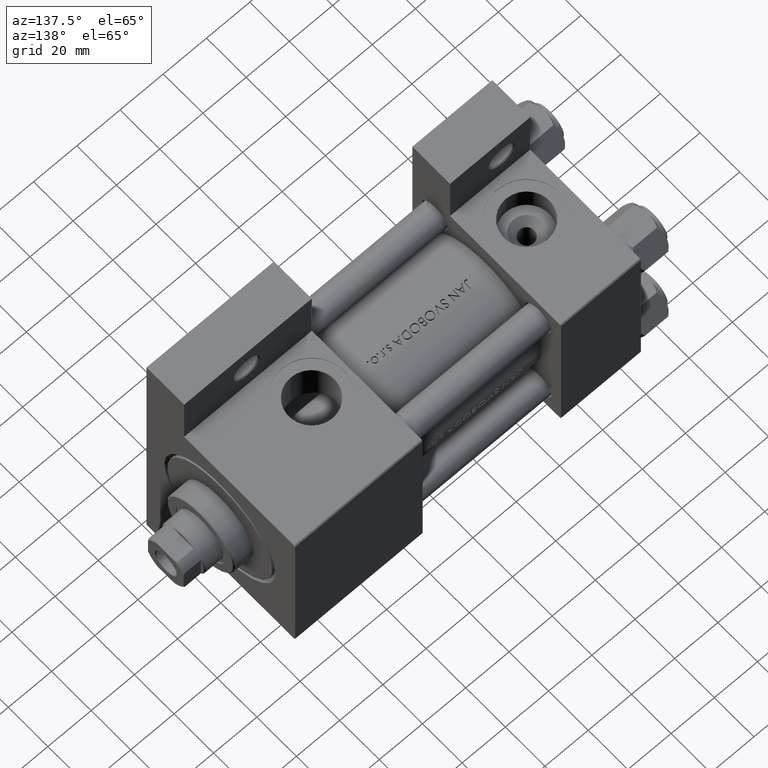
[diagram: clean part render]
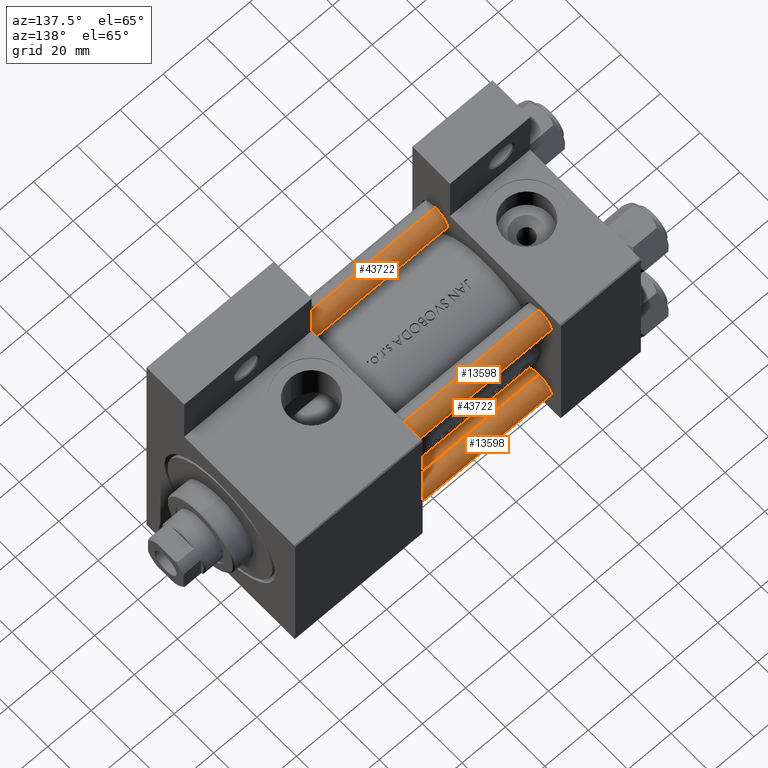
[diagram: same view with one multi-face feature highlighted, each face labeled with its STEP entity id]
A machine part, auxiliary view. The highlighted faces form ONE feature: a constant-radius fillet chain: 4 tangent blend faces with common blend radius 6 mm. The faces share edges in the B-rep.
Their STEP definitions:
[1] entity #13598 (Cylinder):
#445 = DIRECTION ( 'NONE',  ( -0.000000000000000000, -0.000000000000000000, -1.000000000000000000 ) ) ;
#1982 = CARTESIAN_POINT ( 'NONE',  ( -6.000000000000000888, 0.000000000000000000, 0.5000000000000004441 ) ) ;
#2891 = VERTEX_POINT ( 'NONE', #1982 ) ;
#6755 = VERTEX_POINT ( 'NONE', #19419 ) ;
#7080 = ORIENTED_EDGE ( 'NONE', *, *, #23032, .T. ) ;
#8193 = FACE_OUTER_BOUND ( 'NONE', #40879, .T. ) ;
#9201 = AXIS2_PLACEMENT_3D ( 'NONE', #34568, #445, #11924 ) ;
#11924 = DIRECTION ( 'NONE',  ( -1.000000000000000000, 0.000000000000000000, 0.000000000000000000 ) ) ;
#12813 = LINE ( 'NONE', #39923, #15067 ) ;
#13515 = ORIENTED_EDGE ( 'NONE', *, *, #48954, .T. ) ;
#13598 = ADVANCED_FACE ( 'NONE', ( #8193 ), #34069, .T. ) ;
#13812 = CARTESIAN_POINT ( 'NONE',  ( 6.000000000000000888, 7.347880794884120722E-16, 0.5000000000000004441 ) ) ;
#13941 = VERTEX_POINT ( 'NONE', #13812 ) ;
#14401 = CIRCLE ( 'NONE', #42256, 6.000000000000000888 ) ;
#15067 = VECTOR ( 'NONE', #34955, 1000.000000000000000 ) ;
#16630 = CARTESIAN_POINT ( 'NONE',  ( -6.000000000000000888, 0.000000000000000000, 130.0000000000000000 ) ) ;
#17150 = EDGE_CURVE ( 'NONE', #24340, #2891, #35330, .T. ) ;
#19419 = CARTESIAN_POINT ( 'NONE',  ( 6.000000000000000888, 7.347880794884120722E-16, 129.4999999999999716 ) ) ;
#20543 = DIRECTION ( 'NONE',  ( -0.000000000000000000, -0.000000000000000000, 1.000000000000000000 ) ) ;
#20779 = CIRCLE ( 'NONE', #42147, 6.000000000000000888 ) ;
#22416 = ORIENTED_EDGE ( 'NONE', *, *, #17150, .F. ) ;
#23032 = EDGE_CURVE ( 'NONE', #6755, #13941, #12813, .T. ) ;
#24340 = VERTEX_POINT ( 'NONE', #32451 ) ;
#26492 = EDGE_CURVE ( 'NONE', #13941, #2891, #20779, .T. ) ;
#28282 = DIRECTION ( 'NONE',  ( 1.000000000000000000, 0.000000000000000000, 0.000000000000000000 ) ) ;
#28302 = DIRECTION ( 'NONE',  ( 1.000000000000000000, 0.000000000000000000, 0.000000000000000000 ) ) ;
#28785 = CARTESIAN_POINT ( 'NONE',  ( 0.000000000000000000, 0.000000000000000000, 129.4999999999999716 ) ) ;
#30851 = DIRECTION ( 'NONE',  ( -0.000000000000000000, -0.000000000000000000, -1.000000000000000000 ) ) ;
#31576 = ORIENTED_EDGE ( 'NONE', *, *, #26492, .T. ) ;
#32451 = CARTESIAN_POINT ( 'NONE',  ( -6.000000000000000888, 0.000000000000000000, 129.4999999999999716 ) ) ;
#34069 = CYLINDRICAL_SURFACE ( 'NONE', #9201, 6.000000000000000888 ) ;
#34568 = CARTESIAN_POINT ( 'NONE',  ( 0.000000000000000000, 0.000000000000000000, 130.0000000000000000 ) ) ;
#34955 = DIRECTION ( 'NONE',  ( -0.000000000000000000, -0.000000000000000000, -1.000000000000000000 ) ) ;
#35330 = LINE ( 'NONE', #16630, #36343 ) ;
#36343 = VECTOR ( 'NONE', #30851, 1000.000000000000000 ) ;
#36456 = CARTESIAN_POINT ( 'NONE',  ( 0.000000000000000000, 0.000000000000000000, 0.5000000000000004441 ) ) ;
#39246 = DIRECTION ( 'NONE',  ( 0.000000000000000000, 0.000000000000000000, -1.000000000000000000 ) ) ;
#39923 = CARTESIAN_POINT ( 'NONE',  ( 6.000000000000000888, 7.347880794884120722E-16, 130.0000000000000000 ) ) ;
#40879 = EDGE_LOOP ( 'NONE', ( #13515, #7080, #31576, #22416 ) ) ;
#42147 = AXIS2_PLACEMENT_3D ( 'NONE', #36456, #20543, #28282 ) ;
#42256 = AXIS2_PLACEMENT_3D ( 'NONE', #28785, #39246, #28302 ) ;
#48954 = EDGE_CURVE ( 'NONE', #24340, #6755, #14401, .T. ) ;
[2] entity #43722 (Cylinder):
#213 = DIRECTION ( 'NONE',  ( -0.000000000000000000, -0.000000000000000000, 1.000000000000000000 ) ) ;
#1982 = CARTESIAN_POINT ( 'NONE',  ( -6.000000000000000888, 0.000000000000000000, 0.5000000000000004441 ) ) ;
#2891 = VERTEX_POINT ( 'NONE', #1982 ) ;
#3680 = ORIENTED_EDGE ( 'NONE', *, *, #23032, .F. ) ;
#3995 = AXIS2_PLACEMENT_3D ( 'NONE', #6613, #6852, #21813 ) ;
#6613 = CARTESIAN_POINT ( 'NONE',  ( 0.000000000000000000, 0.000000000000000000, 130.0000000000000000 ) ) ;
#6755 = VERTEX_POINT ( 'NONE', #19419 ) ;
#6852 = DIRECTION ( 'NONE',  ( -0.000000000000000000, -0.000000000000000000, -1.000000000000000000 ) ) ;
#7698 = CARTESIAN_POINT ( 'NONE',  ( 0.000000000000000000, 0.000000000000000000, 0.5000000000000004441 ) ) ;
#8849 = AXIS2_PLACEMENT_3D ( 'NONE', #7698, #213, #27135 ) ;
#11907 = AXIS2_PLACEMENT_3D ( 'NONE', #19197, #31395, #15713 ) ;
#12813 = LINE ( 'NONE', #39923, #15067 ) ;
#13812 = CARTESIAN_POINT ( 'NONE',  ( 6.000000000000000888, 7.347880794884120722E-16, 0.5000000000000004441 ) ) ;
#13941 = VERTEX_POINT ( 'NONE', #13812 ) ;
#15067 = VECTOR ( 'NONE', #34955, 1000.000000000000000 ) ;
#15283 = EDGE_LOOP ( 'NONE', ( #3680, #21913, #46665, #33153 ) ) ;
#15713 = DIRECTION ( 'NONE',  ( 1.000000000000000000, 0.000000000000000000, 0.000000000000000000 ) ) ;
#16630 = CARTESIAN_POINT ( 'NONE',  ( -6.000000000000000888, 0.000000000000000000, 130.0000000000000000 ) ) ;
#17150 = EDGE_CURVE ( 'NONE', #24340, #2891, #35330, .T. ) ;
#19197 = CARTESIAN_POINT ( 'NONE',  ( 0.000000000000000000, 0.000000000000000000, 129.4999999999999716 ) ) ;
#19419 = CARTESIAN_POINT ( 'NONE',  ( 6.000000000000000888, 7.347880794884120722E-16, 129.4999999999999716 ) ) ;
#21813 = DIRECTION ( 'NONE',  ( -1.000000000000000000, 0.000000000000000000, 0.000000000000000000 ) ) ;
#21913 = ORIENTED_EDGE ( 'NONE', *, *, #22618, .T. ) ;
#22618 = EDGE_CURVE ( 'NONE', #6755, #24340, #46083, .T. ) ;
#23032 = EDGE_CURVE ( 'NONE', #6755, #13941, #12813, .T. ) ;
#24340 = VERTEX_POINT ( 'NONE', #32451 ) ;
#25556 = CYLINDRICAL_SURFACE ( 'NONE', #3995, 6.000000000000000888 ) ;
#27135 = DIRECTION ( 'NONE',  ( 1.000000000000000000, 0.000000000000000000, 0.000000000000000000 ) ) ;
#27198 = EDGE_CURVE ( 'NONE', #2891, #13941, #45419, .T. ) ;
#30851 = DIRECTION ( 'NONE',  ( -0.000000000000000000, -0.000000000000000000, -1.000000000000000000 ) ) ;
#31395 = DIRECTION ( 'NONE',  ( 0.000000000000000000, 0.000000000000000000, -1.000000000000000000 ) ) ;
#32451 = CARTESIAN_POINT ( 'NONE',  ( -6.000000000000000888, 0.000000000000000000, 129.4999999999999716 ) ) ;
#33153 = ORIENTED_EDGE ( 'NONE', *, *, #27198, .T. ) ;
#34955 = DIRECTION ( 'NONE',  ( -0.000000000000000000, -0.000000000000000000, -1.000000000000000000 ) ) ;
#35330 = LINE ( 'NONE', #16630, #36343 ) ;
#36343 = VECTOR ( 'NONE', #30851, 1000.000000000000000 ) ;
#39923 = CARTESIAN_POINT ( 'NONE',  ( 6.000000000000000888, 7.347880794884120722E-16, 130.0000000000000000 ) ) ;
#41213 = FACE_OUTER_BOUND ( 'NONE', #15283, .T. ) ;
#43722 = ADVANCED_FACE ( 'NONE', ( #41213 ), #25556, .T. ) ;
#45419 = CIRCLE ( 'NONE', #8849, 6.000000000000000888 ) ;
#46083 = CIRCLE ( 'NONE', #11907, 6.000000000000000888 ) ;
#46665 = ORIENTED_EDGE ( 'NONE', *, *, #17150, .T. ) ;
[3] entity #13598 (Cylinder):
#445 = DIRECTION ( 'NONE',  ( -0.000000000000000000, -0.000000000000000000, -1.000000000000000000 ) ) ;
#1982 = CARTESIAN_POINT ( 'NONE',  ( -6.000000000000000888, 0.000000000000000000, 0.5000000000000004441 ) ) ;
#2891 = VERTEX_POINT ( 'NONE', #1982 ) ;
#6755 = VERTEX_POINT ( 'NONE', #19419 ) ;
#7080 = ORIENTED_EDGE ( 'NONE', *, *, #23032, .T. ) ;
#8193 = FACE_OUTER_BOUND ( 'NONE', #40879, .T. ) ;
#9201 = AXIS2_PLACEMENT_3D ( 'NONE', #34568, #445, #11924 ) ;
#11924 = DIRECTION ( 'NONE',  ( -1.000000000000000000, 0.000000000000000000, 0.000000000000000000 ) ) ;
#12813 = LINE ( 'NONE', #39923, #15067 ) ;
#13515 = ORIENTED_EDGE ( 'NONE', *, *, #48954, .T. ) ;
#13598 = ADVANCED_FACE ( 'NONE', ( #8193 ), #34069, .T. ) ;
#13812 = CARTESIAN_POINT ( 'NONE',  ( 6.000000000000000888, 7.347880794884120722E-16, 0.5000000000000004441 ) ) ;
#13941 = VERTEX_POINT ( 'NONE', #13812 ) ;
#14401 = CIRCLE ( 'NONE', #42256, 6.000000000000000888 ) ;
#15067 = VECTOR ( 'NONE', #34955, 1000.000000000000000 ) ;
#16630 = CARTESIAN_POINT ( 'NONE',  ( -6.000000000000000888, 0.000000000000000000, 130.0000000000000000 ) ) ;
#17150 = EDGE_CURVE ( 'NONE', #24340, #2891, #35330, .T. ) ;
#19419 = CARTESIAN_POINT ( 'NONE',  ( 6.000000000000000888, 7.347880794884120722E-16, 129.4999999999999716 ) ) ;
#20543 = DIRECTION ( 'NONE',  ( -0.000000000000000000, -0.000000000000000000, 1.000000000000000000 ) ) ;
#20779 = CIRCLE ( 'NONE', #42147, 6.000000000000000888 ) ;
#22416 = ORIENTED_EDGE ( 'NONE', *, *, #17150, .F. ) ;
#23032 = EDGE_CURVE ( 'NONE', #6755, #13941, #12813, .T. ) ;
#24340 = VERTEX_POINT ( 'NONE', #32451 ) ;
#26492 = EDGE_CURVE ( 'NONE', #13941, #2891, #20779, .T. ) ;
#28282 = DIRECTION ( 'NONE',  ( 1.000000000000000000, 0.000000000000000000, 0.000000000000000000 ) ) ;
#28302 = DIRECTION ( 'NONE',  ( 1.000000000000000000, 0.000000000000000000, 0.000000000000000000 ) ) ;
#28785 = CARTESIAN_POINT ( 'NONE',  ( 0.000000000000000000, 0.000000000000000000, 129.4999999999999716 ) ) ;
#30851 = DIRECTION ( 'NONE',  ( -0.000000000000000000, -0.000000000000000000, -1.000000000000000000 ) ) ;
#31576 = ORIENTED_EDGE ( 'NONE', *, *, #26492, .T. ) ;
#32451 = CARTESIAN_POINT ( 'NONE',  ( -6.000000000000000888, 0.000000000000000000, 129.4999999999999716 ) ) ;
#34069 = CYLINDRICAL_SURFACE ( 'NONE', #9201, 6.000000000000000888 ) ;
#34568 = CARTESIAN_POINT ( 'NONE',  ( 0.000000000000000000, 0.000000000000000000, 130.0000000000000000 ) ) ;
#34955 = DIRECTION ( 'NONE',  ( -0.000000000000000000, -0.000000000000000000, -1.000000000000000000 ) ) ;
#35330 = LINE ( 'NONE', #16630, #36343 ) ;
#36343 = VECTOR ( 'NONE', #30851, 1000.000000000000000 ) ;
#36456 = CARTESIAN_POINT ( 'NONE',  ( 0.000000000000000000, 0.000000000000000000, 0.5000000000000004441 ) ) ;
#39246 = DIRECTION ( 'NONE',  ( 0.000000000000000000, 0.000000000000000000, -1.000000000000000000 ) ) ;
#39923 = CARTESIAN_POINT ( 'NONE',  ( 6.000000000000000888, 7.347880794884120722E-16, 130.0000000000000000 ) ) ;
#40879 = EDGE_LOOP ( 'NONE', ( #13515, #7080, #31576, #22416 ) ) ;
#42147 = AXIS2_PLACEMENT_3D ( 'NONE', #36456, #20543, #28282 ) ;
#42256 = AXIS2_PLACEMENT_3D ( 'NONE', #28785, #39246, #28302 ) ;
#48954 = EDGE_CURVE ( 'NONE', #24340, #6755, #14401, .T. ) ;
[4] entity #43722 (Cylinder):
#213 = DIRECTION ( 'NONE',  ( -0.000000000000000000, -0.000000000000000000, 1.000000000000000000 ) ) ;
#1982 = CARTESIAN_POINT ( 'NONE',  ( -6.000000000000000888, 0.000000000000000000, 0.5000000000000004441 ) ) ;
#2891 = VERTEX_POINT ( 'NONE', #1982 ) ;
#3680 = ORIENTED_EDGE ( 'NONE', *, *, #23032, .F. ) ;
#3995 = AXIS2_PLACEMENT_3D ( 'NONE', #6613, #6852, #21813 ) ;
#6613 = CARTESIAN_POINT ( 'NONE',  ( 0.000000000000000000, 0.000000000000000000, 130.0000000000000000 ) ) ;
#6755 = VERTEX_POINT ( 'NONE', #19419 ) ;
#6852 = DIRECTION ( 'NONE',  ( -0.000000000000000000, -0.000000000000000000, -1.000000000000000000 ) ) ;
#7698 = CARTESIAN_POINT ( 'NONE',  ( 0.000000000000000000, 0.000000000000000000, 0.5000000000000004441 ) ) ;
#8849 = AXIS2_PLACEMENT_3D ( 'NONE', #7698, #213, #27135 ) ;
#11907 = AXIS2_PLACEMENT_3D ( 'NONE', #19197, #31395, #15713 ) ;
#12813 = LINE ( 'NONE', #39923, #15067 ) ;
#13812 = CARTESIAN_POINT ( 'NONE',  ( 6.000000000000000888, 7.347880794884120722E-16, 0.5000000000000004441 ) ) ;
#13941 = VERTEX_POINT ( 'NONE', #13812 ) ;
#15067 = VECTOR ( 'NONE', #34955, 1000.000000000000000 ) ;
#15283 = EDGE_LOOP ( 'NONE', ( #3680, #21913, #46665, #33153 ) ) ;
#15713 = DIRECTION ( 'NONE',  ( 1.000000000000000000, 0.000000000000000000, 0.000000000000000000 ) ) ;
#16630 = CARTESIAN_POINT ( 'NONE',  ( -6.000000000000000888, 0.000000000000000000, 130.0000000000000000 ) ) ;
#17150 = EDGE_CURVE ( 'NONE', #24340, #2891, #35330, .T. ) ;
#19197 = CARTESIAN_POINT ( 'NONE',  ( 0.000000000000000000, 0.000000000000000000, 129.4999999999999716 ) ) ;
#19419 = CARTESIAN_POINT ( 'NONE',  ( 6.000000000000000888, 7.347880794884120722E-16, 129.4999999999999716 ) ) ;
#21813 = DIRECTION ( 'NONE',  ( -1.000000000000000000, 0.000000000000000000, 0.000000000000000000 ) ) ;
#21913 = ORIENTED_EDGE ( 'NONE', *, *, #22618, .T. ) ;
#22618 = EDGE_CURVE ( 'NONE', #6755, #24340, #46083, .T. ) ;
#23032 = EDGE_CURVE ( 'NONE', #6755, #13941, #12813, .T. ) ;
#24340 = VERTEX_POINT ( 'NONE', #32451 ) ;
#25556 = CYLINDRICAL_SURFACE ( 'NONE', #3995, 6.000000000000000888 ) ;
#27135 = DIRECTION ( 'NONE',  ( 1.000000000000000000, 0.000000000000000000, 0.000000000000000000 ) ) ;
#27198 = EDGE_CURVE ( 'NONE', #2891, #13941, #45419, .T. ) ;
#30851 = DIRECTION ( 'NONE',  ( -0.000000000000000000, -0.000000000000000000, -1.000000000000000000 ) ) ;
#31395 = DIRECTION ( 'NONE',  ( 0.000000000000000000, 0.000000000000000000, -1.000000000000000000 ) ) ;
#32451 = CARTESIAN_POINT ( 'NONE',  ( -6.000000000000000888, 0.000000000000000000, 129.4999999999999716 ) ) ;
#33153 = ORIENTED_EDGE ( 'NONE', *, *, #27198, .T. ) ;
#34955 = DIRECTION ( 'NONE',  ( -0.000000000000000000, -0.000000000000000000, -1.000000000000000000 ) ) ;
#35330 = LINE ( 'NONE', #16630, #36343 ) ;
#36343 = VECTOR ( 'NONE', #30851, 1000.000000000000000 ) ;
#39923 = CARTESIAN_POINT ( 'NONE',  ( 6.000000000000000888, 7.347880794884120722E-16, 130.0000000000000000 ) ) ;
#41213 = FACE_OUTER_BOUND ( 'NONE', #15283, .T. ) ;
#43722 = ADVANCED_FACE ( 'NONE', ( #41213 ), #25556, .T. ) ;
#45419 = CIRCLE ( 'NONE', #8849, 6.000000000000000888 ) ;
#46083 = CIRCLE ( 'NONE', #11907, 6.000000000000000888 ) ;
#46665 = ORIENTED_EDGE ( 'NONE', *, *, #17150, .T. ) ;